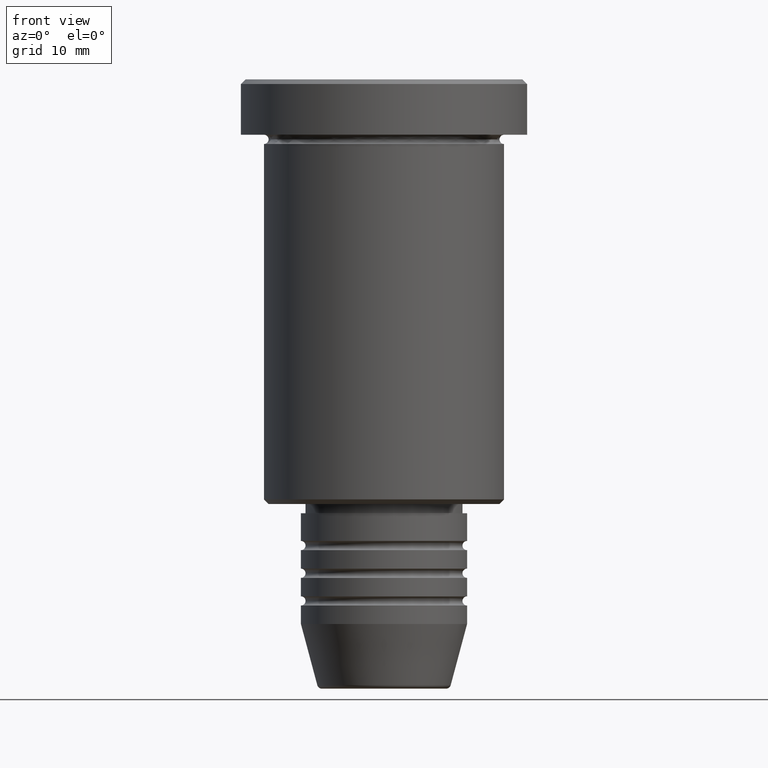
[diagram: clean part render]
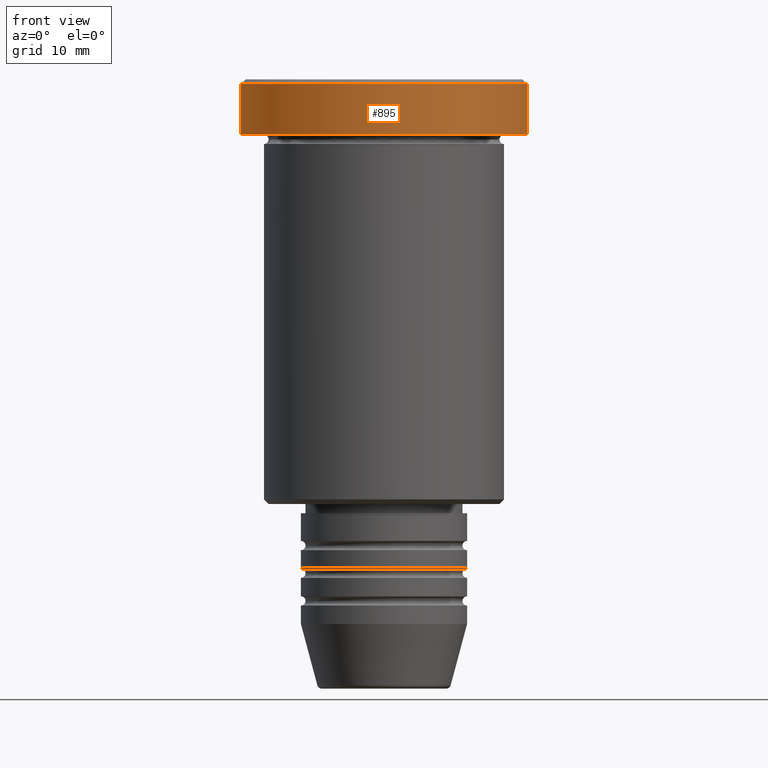
[diagram: same view with one face highlighted and labeled with its STEP entity id]
A machine part, front view. The second image highlights one B-rep face of the part: STEP entity #895.
In plain terms, the highlighted cylindrical surface (partial cylindrical patch) has radius 15.5 mm, axis along (-0, -0, 1).
Its self-contained STEP definition (entity closure, byte-faithful):
#45 = EDGE_CURVE ( 'NONE', #139, #283, #543, .T. ) ;
#46 = AXIS2_PLACEMENT_3D ( 'NONE', #350, #66, #54 ) ;
#53 = EDGE_CURVE ( 'NONE', #283, #531, #952, .T. ) ;
#54 = DIRECTION ( 'NONE',  ( 1.000000000000000000, 0.000000000000000000, 0.000000000000000000 ) ) ;
#66 = DIRECTION ( 'NONE',  ( 0.000000000000000000, 0.000000000000000000, -1.000000000000000000 ) ) ;
#75 = CARTESIAN_POINT ( 'NONE',  ( -15.50000000000000000, 1.898202538678397557E-15, 0.000000000000000000 ) ) ;
#135 = EDGE_CURVE ( 'NONE', #531, #875, #487, .T. ) ;
#139 = VERTEX_POINT ( 'NONE', #891 ) ;
#205 = AXIS2_PLACEMENT_3D ( 'NONE', #1133, #661, #485 ) ;
#222 = AXIS2_PLACEMENT_3D ( 'NONE', #1135, #316, #588 ) ;
#267 = ORIENTED_EDGE ( 'NONE', *, *, #135, .T. ) ;
#283 = VERTEX_POINT ( 'NONE', #645 ) ;
#304 = CARTESIAN_POINT ( 'NONE',  ( -15.50000000000000000, 1.898202538678397557E-15, -0.5000000000000057732 ) ) ;
#316 = DIRECTION ( 'NONE',  ( -0.000000000000000000, -0.000000000000000000, 1.000000000000000000 ) ) ;
#350 = CARTESIAN_POINT ( 'NONE',  ( 0.000000000000000000, 0.000000000000000000, -0.5000000000000057732 ) ) ;
#387 = FACE_OUTER_BOUND ( 'NONE', #423, .T. ) ;
#423 = EDGE_LOOP ( 'NONE', ( #519, #633, #763, #267 ) ) ;
#485 = DIRECTION ( 'NONE',  ( 1.000000000000000000, 0.000000000000000000, 0.000000000000000000 ) ) ;
#487 = CIRCLE ( 'NONE', #46, 15.50000000000000000 ) ;
#490 = VECTOR ( 'NONE', #992, 1000.000000000000000 ) ;
#519 = ORIENTED_EDGE ( 'NONE', *, *, #817, .F. ) ;
#531 = VERTEX_POINT ( 'NONE', #788 ) ;
#543 = CIRCLE ( 'NONE', #222, 15.50000000000000000 ) ;
#588 = DIRECTION ( 'NONE',  ( 1.000000000000000000, 0.000000000000000000, 0.000000000000000000 ) ) ;
#633 = ORIENTED_EDGE ( 'NONE', *, *, #45, .T. ) ;
#645 = CARTESIAN_POINT ( 'NONE',  ( 15.50000000000000000, 0.000000000000000000, -5.999999999999995559 ) ) ;
#661 = DIRECTION ( 'NONE',  ( -0.000000000000000000, -0.000000000000000000, 1.000000000000000000 ) ) ;
#684 = CARTESIAN_POINT ( 'NONE',  ( 15.50000000000000000, 0.000000000000000000, 0.000000000000000000 ) ) ;
#763 = ORIENTED_EDGE ( 'NONE', *, *, #53, .T. ) ;
#788 = CARTESIAN_POINT ( 'NONE',  ( 15.50000000000000000, 0.000000000000000000, -0.5000000000000057732 ) ) ;
#817 = EDGE_CURVE ( 'NONE', #139, #875, #896, .T. ) ;
#831 = CYLINDRICAL_SURFACE ( 'NONE', #205, 15.50000000000000000 ) ;
#875 = VERTEX_POINT ( 'NONE', #304 ) ;
#891 = CARTESIAN_POINT ( 'NONE',  ( -15.50000000000000000, 1.898202538678397557E-15, -5.999999999999995559 ) ) ;
#895 = ADVANCED_FACE ( 'NONE', ( #387 ), #831, .T. ) ;
#896 = LINE ( 'NONE', #75, #490 ) ;
#952 = LINE ( 'NONE', #684, #1020 ) ;
#992 = DIRECTION ( 'NONE',  ( -0.000000000000000000, -0.000000000000000000, 1.000000000000000000 ) ) ;
#1020 = VECTOR ( 'NONE', #1047, 1000.000000000000000 ) ;
#1047 = DIRECTION ( 'NONE',  ( -0.000000000000000000, -0.000000000000000000, 1.000000000000000000 ) ) ;
#1133 = CARTESIAN_POINT ( 'NONE',  ( 0.000000000000000000, 0.000000000000000000, 0.000000000000000000 ) ) ;
#1135 = CARTESIAN_POINT ( 'NONE',  ( 0.000000000000000000, 0.000000000000000000, -5.999999999999995559 ) ) ;